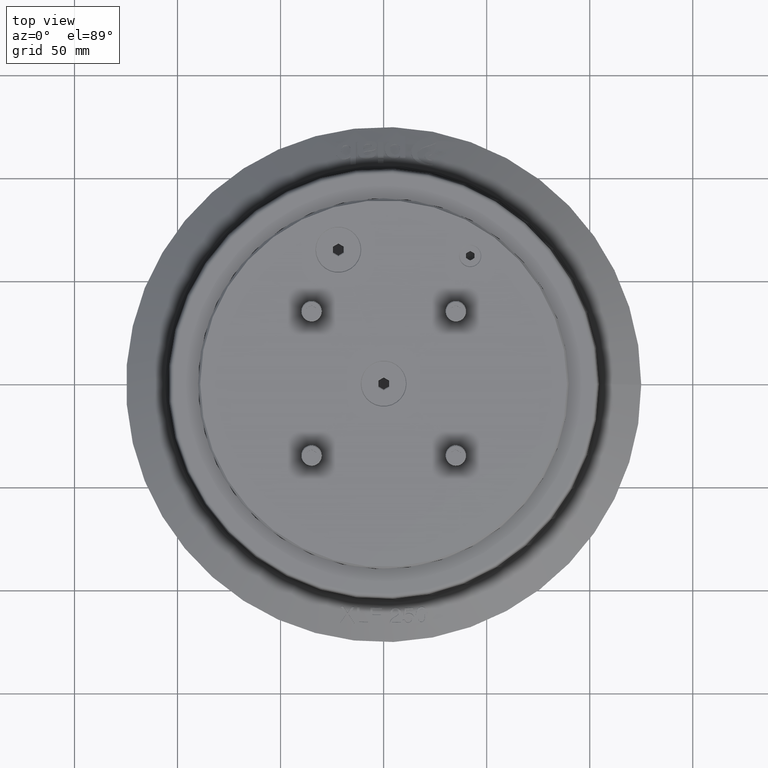
[diagram: clean part render]
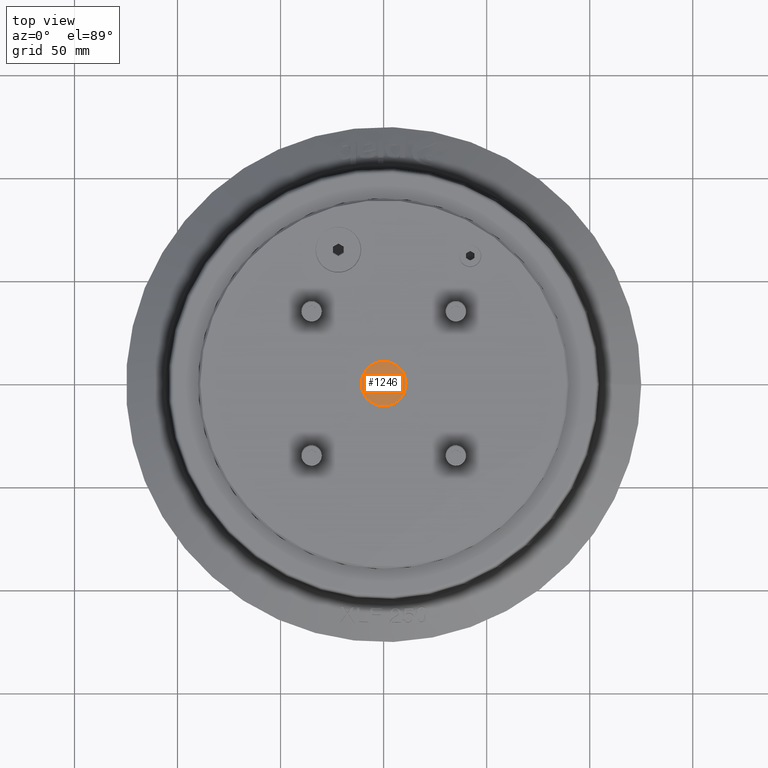
[diagram: same view with one face highlighted and labeled with its STEP entity id]
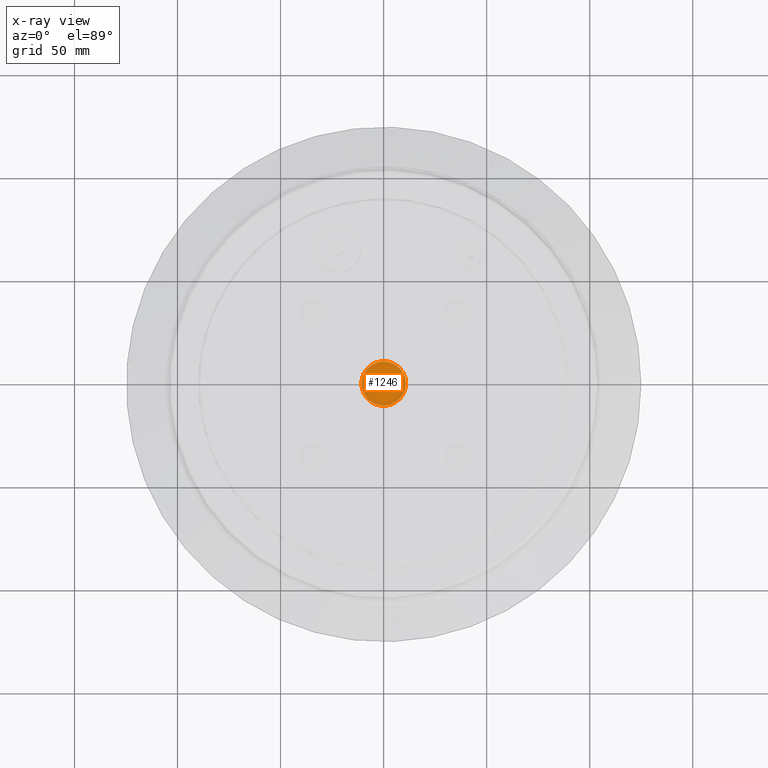
[diagram: x-ray of the same camera — body ghosted, the highlighted face saturated]
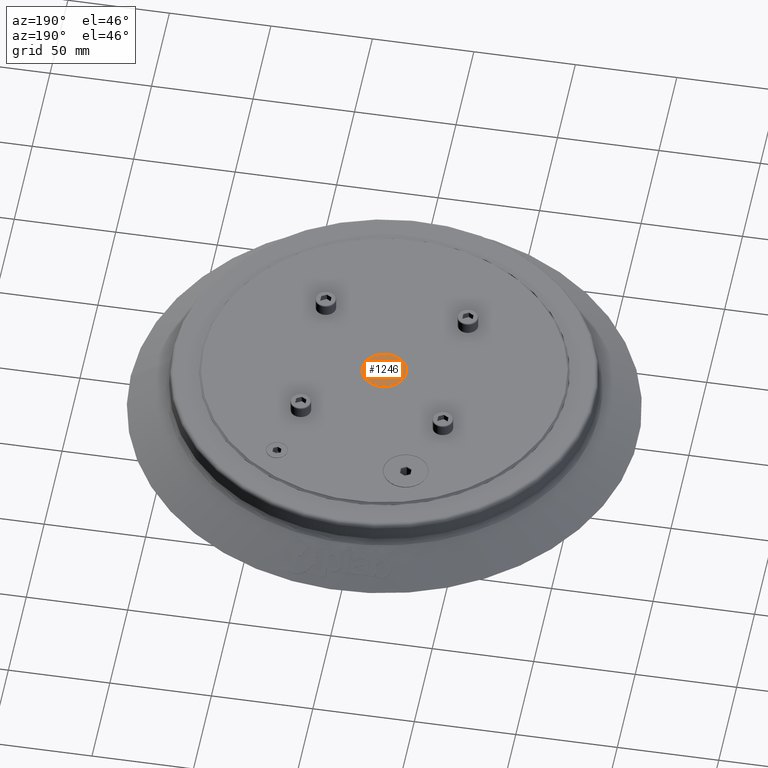
[diagram: same view with one face highlighted and labeled with its STEP entity id]
A machine part, top view. The second image highlights one B-rep face of the part: STEP entity #1246.
The next image is the same camera in x-ray: the body ghosted, the highlighted face saturated — about 0% of this face is hidden behind the body in this view.
A second angle (auxiliary view) of the same face is appended — the face is thin or edge-on in the first view.
In plain terms, the highlighted planar face has unit normal (0, 0, 1).
Its self-contained STEP definition (entity closure, byte-faithful):
#1246 = ADVANCED_FACE( '', ( #2974, #2975 ), #2976, .T. );
#2974 = FACE_BOUND( '', #5692, .T. );
#2975 = FACE_OUTER_BOUND( '', #5693, .T. );
#2976 = PLANE( '', #5694 );
#5692 = EDGE_LOOP( '', ( #10724, #10725, #10726, #10727, #10728, #10729 ) );
#5693 = EDGE_LOOP( '', ( #10730 ) );
#5694 = AXIS2_PLACEMENT_3D( '', #10731, #10732, #10733 );
#10724 = ORIENTED_EDGE( '', *, *, #15505, .T. );
#10725 = ORIENTED_EDGE( '', *, *, #15782, .T. );
#10726 = ORIENTED_EDGE( '', *, *, #15783, .T. );
#10727 = ORIENTED_EDGE( '', *, *, #15784, .T. );
#10728 = ORIENTED_EDGE( '', *, *, #15231, .T. );
#10729 = ORIENTED_EDGE( '', *, *, #15785, .T. );
#10730 = ORIENTED_EDGE( '', *, *, #15408, .T. );
#10731 = CARTESIAN_POINT( '', ( 0.000000000000000, 0.000000000000000, 47.8932291616039 ) );
#10732 = DIRECTION( '', ( 0.000000000000000, 0.000000000000000, 1.00000000000000 ) );
#10733 = DIRECTION( '', ( 1.00000000000000, 0.000000000000000, 0.000000000000000 ) );
#15231 = EDGE_CURVE( '', #17603, #17607, #17609, .T. );
#15408 = EDGE_CURVE( '', #17908, #17908, #17909, .T. );
#15505 = EDGE_CURVE( '', #18072, #18077, #18079, .T. );
#15782 = EDGE_CURVE( '', #18077, #18528, #18529, .T. );
#15783 = EDGE_CURVE( '', #18528, #18530, #18531, .T. );
#15784 = EDGE_CURVE( '', #18530, #17603, #18532, .T. );
#15785 = EDGE_CURVE( '', #17607, #18072, #18533, .T. );
#17603 = VERTEX_POINT( '', #21151 );
#17607 = VERTEX_POINT( '', #21156 );
#17609 = LINE( '', #21158, #21159 );
#17908 = VERTEX_POINT( '', #21591 );
#17909 = CIRCLE( '', #21592, 10.8500000000000 );
#18072 = VERTEX_POINT( '', #21901 );
#18077 = VERTEX_POINT( '', #21907 );
#18079 = LINE( '', #21909, #21910 );
#18528 = VERTEX_POINT( '', #22672 );
#18529 = LINE( '', #22673, #22674 );
#18530 = VERTEX_POINT( '', #22675 );
#18531 = LINE( '', #22676, #22677 );
#18532 = LINE( '', #22678, #22679 );
#18533 = LINE( '', #22680, #22681 );
#21151 = CARTESIAN_POINT( '', ( 3.74338870086829E-015, -3.46410161513775, 47.8932291616039 ) );
#21156 = CARTESIAN_POINT( '', ( -3.00000000000000, -1.73205080756888, 47.8932291616039 ) );
#21158 = CARTESIAN_POINT( '', ( -1.50000000000000, -2.59807621135332, 47.8932291616039 ) );
#21159 = VECTOR( '', #27723, 1000.00000000000 );
#21591 = CARTESIAN_POINT( '', ( 10.8500000000000, 0.000000000000000, 47.8932291616039 ) );
#21592 = AXIS2_PLACEMENT_3D( '', #27978, #27979, #27980 );
#21901 = CARTESIAN_POINT( '', ( -3.00000000000000, 1.73205080756888, 47.8932291616039 ) );
#21907 = CARTESIAN_POINT( '', ( 3.52654826637118E-015, 3.46410161513775, 47.8932291616039 ) );
#21909 = CARTESIAN_POINT( '', ( -1.50000000000000, 2.59807621135332, 47.8932291616039 ) );
#21910 = VECTOR( '', #28070, 1000.00000000000 );
#22672 = CARTESIAN_POINT( '', ( 3.00000000000000, 1.73205080756889, 47.8932291616039 ) );
#22673 = CARTESIAN_POINT( '', ( 1.50000000000000, 2.59807621135332, 47.8932291616039 ) );
#22674 = VECTOR( '', #28371, 1000.00000000000 );
#22675 = CARTESIAN_POINT( '', ( 3.00000000000000, -1.73205080756889, 47.8932291616039 ) );
#22676 = CARTESIAN_POINT( '', ( 3.00000000000000, 0.000000000000000, 47.8932291616039 ) );
#22677 = VECTOR( '', #28372, 1000.00000000000 );
#22678 = CARTESIAN_POINT( '', ( 1.50000000000000, -2.59807621135332, 47.8932291616039 ) );
#22679 = VECTOR( '', #28373, 1000.00000000000 );
#22680 = CARTESIAN_POINT( '', ( -3.00000000000000, 0.000000000000000, 47.8932291616039 ) );
#22681 = VECTOR( '', #28374, 1000.00000000000 );
#27723 = DIRECTION( '', ( -0.866025403784439, 0.500000000000000, 0.000000000000000 ) );
#27978 = CARTESIAN_POINT( '', ( 0.000000000000000, 0.000000000000000, 47.8932291616039 ) );
#27979 = DIRECTION( '', ( 0.000000000000000, 0.000000000000000, 1.00000000000000 ) );
#27980 = DIRECTION( '', ( 1.00000000000000, 0.000000000000000, 0.000000000000000 ) );
#28070 = DIRECTION( '', ( 0.866025403784439, 0.500000000000000, 0.000000000000000 ) );
#28371 = DIRECTION( '', ( 0.866025403784439, -0.499999999999999, 0.000000000000000 ) );
#28372 = DIRECTION( '', ( 0.000000000000000, -1.00000000000000, 0.000000000000000 ) );
#28373 = DIRECTION( '', ( -0.866025403784439, -0.499999999999999, 0.000000000000000 ) );
#28374 = DIRECTION( '', ( 0.000000000000000, 1.00000000000000, 0.000000000000000 ) );